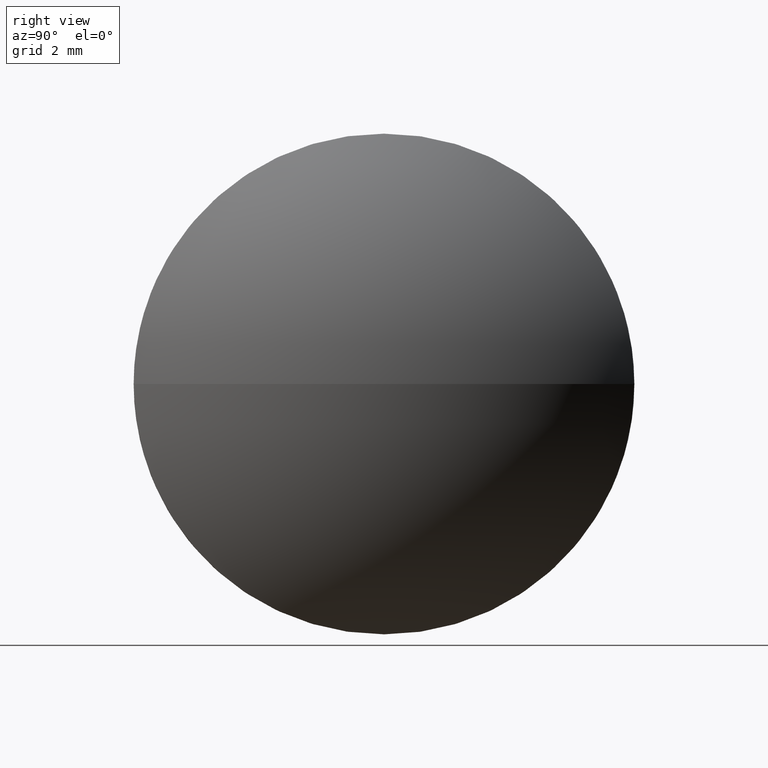
[diagram: clean part render]
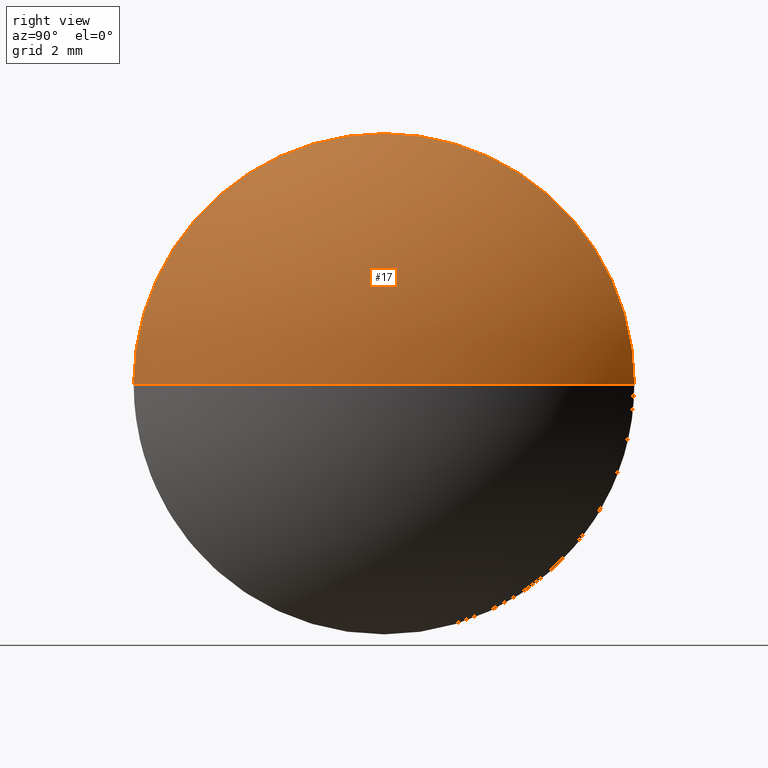
[diagram: same view with one face highlighted and labeled with its STEP entity id]
A machine part, right view. The second image highlights one B-rep face of the part: STEP entity #17.
In plain terms, the highlighted spherical surface has radius 6.867 mm.
Its self-contained STEP definition (entity closure, byte-faithful):
#4 = AXIS2_PLACEMENT_3D ( 'NONE', #106, #11, #63 ) ;
#6 = CIRCLE ( 'NONE', #4, 5.000000000000004400 ) ;
#9 = CARTESIAN_POINT ( 'NONE',  ( 444.0298561059135000, 96.92527297599600900, 0.0000000000000000000 ) ) ;
#11 = DIRECTION ( 'NONE',  ( -1.000000000000000000, -0.0000000000000000000, -0.0000000000000000000 ) ) ;
#17 = ADVANCED_FACE ( 'NONE', ( #180 ), #186, .T. ) ;
#21 = ORIENTED_EDGE ( 'NONE', *, *, #101, .F. ) ;
#24 = AXIS2_PLACEMENT_3D ( 'NONE', #157, #95, #112 ) ;
#45 = DIRECTION ( 'NONE',  ( 0.0000000000000000000, 0.0000000000000000000, -1.000000000000000000 ) ) ;
#56 = VERTEX_POINT ( 'NONE', #89 ) ;
#60 = CARTESIAN_POINT ( 'NONE',  ( 448.7368931429505200, 91.92527297599600900, 0.0000000000000000000 ) ) ;
#61 = EDGE_CURVE ( 'NONE', #126, #177, #162, .T. ) ;
#62 = CARTESIAN_POINT ( 'NONE',  ( 444.0298561059135000, 96.92527297599600900, 0.0000000000000000000 ) ) ;
#63 = DIRECTION ( 'NONE',  ( 0.0000000000000000000, 0.0000000000000000000, 1.000000000000000000 ) ) ;
#64 = AXIS2_PLACEMENT_3D ( 'NONE', #9, #45, #165 ) ;
#71 = AXIS2_PLACEMENT_3D ( 'NONE', #93, #134, #121 ) ;
#72 = ORIENTED_EDGE ( 'NONE', *, *, #61, .T. ) ;
#73 = EDGE_CURVE ( 'NONE', #126, #97, #127, .T. ) ;
#79 = DIRECTION ( 'NONE',  ( 0.0000000000000000000, -1.000000000000000000, 0.0000000000000000000 ) ) ;
#80 = ORIENTED_EDGE ( 'NONE', *, *, #73, .F. ) ;
#89 = CARTESIAN_POINT ( 'NONE',  ( 448.7368931429505200, 96.92527297599599500, 5.000000000000004400 ) ) ;
#91 = AXIS2_PLACEMENT_3D ( 'NONE', #62, #153, #79 ) ;
#93 = CARTESIAN_POINT ( 'NONE',  ( 444.0298561059135000, 96.92527297599600900, 0.0000000000000000000 ) ) ;
#95 = DIRECTION ( 'NONE',  ( -1.000000000000000000, -0.0000000000000000000, -0.0000000000000000000 ) ) ;
#96 = CARTESIAN_POINT ( 'NONE',  ( 448.7368931429505200, 101.9252729759960100, 6.123233995736752500E-016 ) ) ;
#97 = VERTEX_POINT ( 'NONE', #60 ) ;
#101 = EDGE_CURVE ( 'NONE', #56, #177, #6, .T. ) ;
#106 = CARTESIAN_POINT ( 'NONE',  ( 448.7368931429505200, 96.92527297599599500, 0.0000000000000000000 ) ) ;
#112 = DIRECTION ( 'NONE',  ( 0.0000000000000000000, 0.0000000000000000000, 1.000000000000000000 ) ) ;
#114 = ORIENTED_EDGE ( 'NONE', *, *, #147, .F. ) ;
#121 = DIRECTION ( 'NONE',  ( 0.0000000000000000000, -1.000000000000000000, -1.224646799147353900E-016 ) ) ;
#126 = VERTEX_POINT ( 'NONE', #154 ) ;
#127 = CIRCLE ( 'NONE', #64, 6.867037037037004400 ) ;
#134 = DIRECTION ( 'NONE',  ( 0.0000000000000000000, -1.224646799147353200E-016, 1.000000000000000000 ) ) ;
#147 = EDGE_CURVE ( 'NONE', #97, #56, #184, .T. ) ;
#153 = DIRECTION ( 'NONE',  ( 0.0000000000000000000, 0.0000000000000000000, 1.000000000000000000 ) ) ;
#154 = CARTESIAN_POINT ( 'NONE',  ( 450.8968931429504900, 96.92527297599600900, 0.0000000000000000000 ) ) ;
#157 = CARTESIAN_POINT ( 'NONE',  ( 448.7368931429505200, 96.92527297599599500, 0.0000000000000000000 ) ) ;
#162 = CIRCLE ( 'NONE', #71, 6.867037037037004400 ) ;
#165 = DIRECTION ( 'NONE',  ( -1.000000000000000000, 0.0000000000000000000, 0.0000000000000000000 ) ) ;
#176 = EDGE_LOOP ( 'NONE', ( #80, #72, #21, #114 ) ) ;
#177 = VERTEX_POINT ( 'NONE', #96 ) ;
#180 = FACE_OUTER_BOUND ( 'NONE', #176, .T. ) ;
#184 = CIRCLE ( 'NONE', #24, 5.000000000000004400 ) ;
#186 = SPHERICAL_SURFACE ( 'NONE', #91, 6.867037037037008000 ) ;